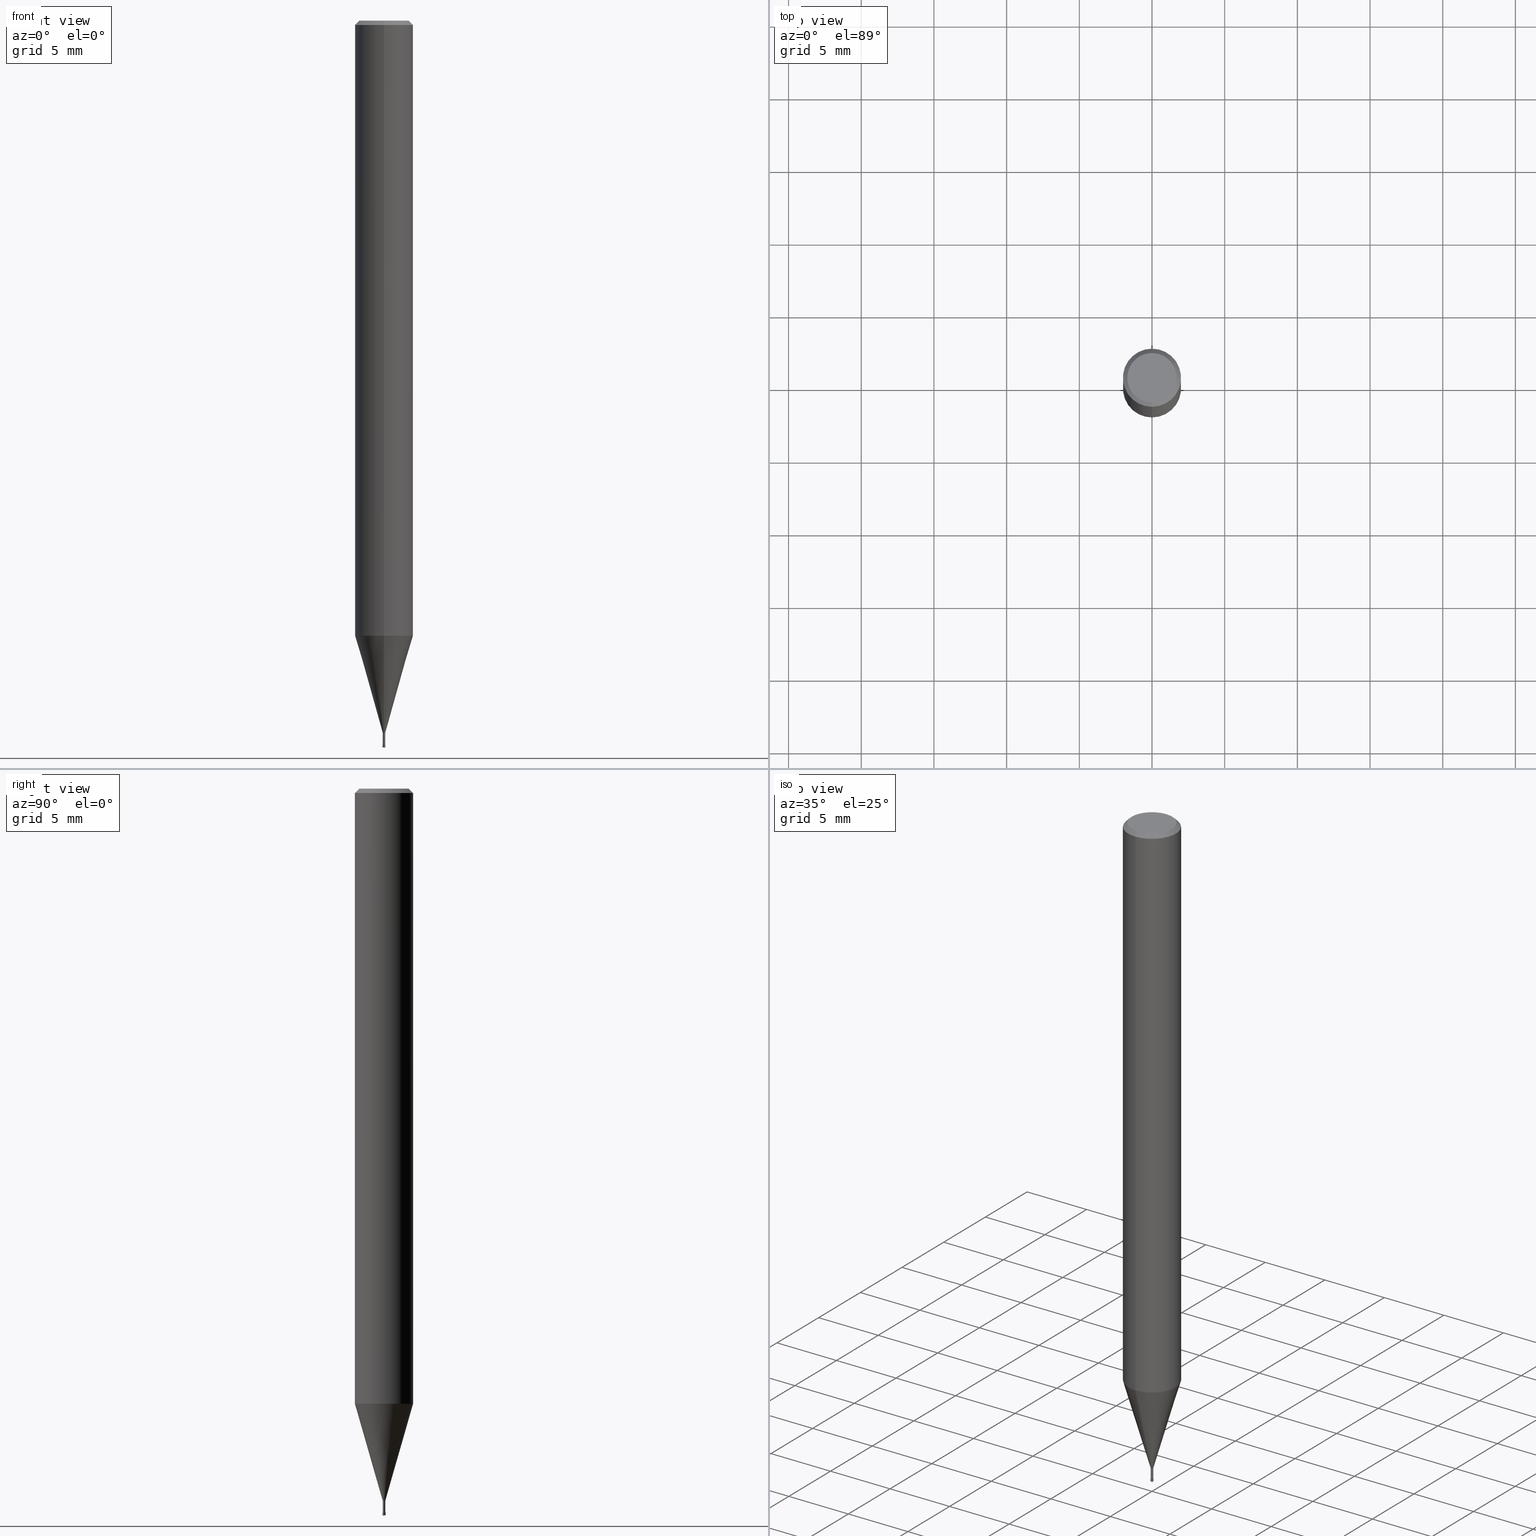
[diagram: canonical four-view strip — front | top / right | iso, engineering-drawing reading convention]
A machine part, canonical four-view strip (front | top / right | iso — engineering-drawing reading convention). The complete STEP part file that produces these views, byte-faithful:
ISO-10303-21;
HEADER;
FILE_DESCRIPTION(('no description'),'unknown implementation level');
FILE_NAME('HLRS2002-005-010E-Huellk.stp','  ',('CIMSOURCE GmbH'),('CADClick - KiM GmbH - www.kimweb.de'),'unknown preprocess','ACIS','unknown authorization');
FILE_SCHEMA(('automotive_design'));
ENDSEC;
DATA;
#1=MECHANICAL_DESIGN_GEOMETRIC_PRESENTATION_REPRESENTATION(' ',(#14,#15,#16,#17,#18,#19,#20,#21,#22,#23,#24,#25,#26,#27,#28,#29,#30,#31,#32,#33,#34,#35,#36,#37,#38,#39,#40,#41,#42,#43,#44,#45,#46,#47,#48,#49,#50,#51,#52,#53,#54,#55,#56,#57,#58,#59,#60,#61,#62,#63,#64,#65,#66,#67,#68,#69,#70,#71,#72,#73,#74,#75,#76,#77,#78,#79,#80),#10);
#2=PRODUCT_DEFINITION_CONTEXT('',#81,'design');
#3=APPLICATION_PROTOCOL_DEFINITION('INTERNATIONAL STANDARD','automotive_design',1994,#81);
#4=PRODUCT_CATEGORY_RELATIONSHIP('NONE','NONE',#82,#83);
#5=SHAPE_DEFINITION_REPRESENTATION(#84,#85);
#6=PRODUCT_DEFINITION_CONTEXT('',#86,'design');
#7=APPLICATION_PROTOCOL_DEFINITION('INTERNATIONAL STANDARD','automotive_design',1994,#86);
#8=PRODUCT_CATEGORY_RELATIONSHIP('NONE','NONE',#87,#88);
#9=SHAPE_DEFINITION_REPRESENTATION(#89,#90);
#10= (GEOMETRIC_REPRESENTATION_CONTEXT(3)GLOBAL_UNCERTAINTY_ASSIGNED_CONTEXT((#93))GLOBAL_UNIT_ASSIGNED_CONTEXT((#95,#96,#97))REPRESENTATION_CONTEXT('NONE','WORKSPACE'));
#14=STYLED_ITEM('',(#99),#100);
#15=STYLED_ITEM('',(#101),#102);
#16=STYLED_ITEM('',(#103),#104);
#17=STYLED_ITEM('',(#105),#106);
#18=STYLED_ITEM('',(#107),#108);
#19=STYLED_ITEM('',(#109),#110);
#20=STYLED_ITEM('',(#111),#112);
#21=STYLED_ITEM('',(#113),#114);
#22=STYLED_ITEM('',(#115),#116);
#23=STYLED_ITEM('',(#117),#118);
#24=STYLED_ITEM('',(#119),#120);
#25=STYLED_ITEM('',(#121),#122);
#26=STYLED_ITEM('',(#123),#124);
#27=STYLED_ITEM('',(#125),#126);
#28=STYLED_ITEM('',(#127),#128);
#29=STYLED_ITEM('',(#129),#130);
#30=STYLED_ITEM('',(#131),#132);
#31=STYLED_ITEM('',(#133),#134);
#32=STYLED_ITEM('',(#135),#136);
#33=STYLED_ITEM('',(#137),#138);
#34=STYLED_ITEM('',(#139),#140);
#35=STYLED_ITEM('',(#141),#142);
#36=STYLED_ITEM('',(#143),#144);
#37=STYLED_ITEM('',(#145),#146);
#38=STYLED_ITEM('',(#147),#148);
#39=STYLED_ITEM('',(#149),#150);
#40=STYLED_ITEM('',(#151),#152);
#41=STYLED_ITEM('',(#153),#154);
#42=STYLED_ITEM('',(#155),#156);
#43=STYLED_ITEM('',(#157),#158);
#44=STYLED_ITEM('',(#159),#160);
#45=STYLED_ITEM('',(#161),#162);
#46=STYLED_ITEM('',(#163),#164);
#47=STYLED_ITEM('',(#165),#166);
#48=STYLED_ITEM('',(#167),#168);
#49=STYLED_ITEM('',(#169),#170);
#50=STYLED_ITEM('',(#171),#172);
#51=STYLED_ITEM('',(#173),#174);
#52=STYLED_ITEM('',(#175),#176);
#53=STYLED_ITEM('',(#177),#178);
#54=STYLED_ITEM('',(#179),#180);
#55=STYLED_ITEM('',(#181),#182);
#56=STYLED_ITEM('',(#183),#184);
#57=STYLED_ITEM('',(#185),#186);
#58=STYLED_ITEM('',(#187),#188);
#59=STYLED_ITEM('',(#189),#190);
#60=STYLED_ITEM('',(#191),#192);
#61=STYLED_ITEM('',(#193),#194);
#62=STYLED_ITEM('',(#195),#196);
#63=STYLED_ITEM('',(#197),#198);
#64=STYLED_ITEM('',(#199),#200);
#65=STYLED_ITEM('',(#201),#202);
#66=STYLED_ITEM('',(#203),#204);
#67=STYLED_ITEM('',(#205),#206);
#68=STYLED_ITEM('',(#207),#208);
#69=STYLED_ITEM('',(#209),#210);
#70=STYLED_ITEM('',(#211),#212);
#71=STYLED_ITEM('',(#213),#214);
#72=STYLED_ITEM('',(#215),#216);
#73=STYLED_ITEM('',(#217),#218);
#74=STYLED_ITEM('',(#219),#220);
#75=STYLED_ITEM('',(#221),#222);
#76=STYLED_ITEM('',(#223),#224);
#77=STYLED_ITEM('',(#225),#226);
#78=STYLED_ITEM('',(#227),#228);
#79=STYLED_ITEM('',(#229),#230);
#80=STYLED_ITEM('',(#231),#232);
#81=APPLICATION_CONTEXT(' ');
#82=PRODUCT_CATEGORY('part','NONE');
#83=PRODUCT_RELATED_PRODUCT_CATEGORY('detail',' ',(#233));
#84=PRODUCT_DEFINITION_SHAPE('NONE','NONE',#234);
#85=ADVANCED_BREP_SHAPE_REPRESENTATION('1',(#186,#235),#10);
#86=APPLICATION_CONTEXT(' ');
#87=PRODUCT_CATEGORY('part','NONE');
#88=PRODUCT_RELATED_PRODUCT_CATEGORY('detail',' ',(#236));
#89=PRODUCT_DEFINITION_SHAPE('NONE','NONE',#237);
#90=ADVANCED_BREP_SHAPE_REPRESENTATION('2',(#100,#238),#10);
#93=UNCERTAINTY_MEASURE_WITH_UNIT(LENGTH_MEASURE(1.0E-006),#95,'','');
#95= (CONVERSION_BASED_UNIT('MILLIMETRE',#241)LENGTH_UNIT()NAMED_UNIT(#244));
#96= (NAMED_UNIT(#246)PLANE_ANGLE_UNIT()SI_UNIT($,.RADIAN.));
#97= (NAMED_UNIT(#246)SOLID_ANGLE_UNIT()SI_UNIT($,.STERADIAN.));
#99=PRESENTATION_STYLE_ASSIGNMENT((#252));
#100=MANIFOLD_SOLID_BREP('2',#253);
#101=PRESENTATION_STYLE_ASSIGNMENT((#254));
#102=VERTEX_POINT('',#255);
#103=PRESENTATION_STYLE_ASSIGNMENT((#256));
#104=ADVANCED_FACE('',(#257),#258,.T.);
#105=PRESENTATION_STYLE_ASSIGNMENT((#259));
#106=EDGE_CURVE('',#202,#232,#260,.T.);
#107=PRESENTATION_STYLE_ASSIGNMENT((#261));
#108=EDGE_CURVE('',#102,#128,#262,.T.);
#109=PRESENTATION_STYLE_ASSIGNMENT((#263));
#110=ADVANCED_FACE('',(#264),#265,.T.);
#111=PRESENTATION_STYLE_ASSIGNMENT((#266));
#112=VERTEX_POINT('',#267);
#113=PRESENTATION_STYLE_ASSIGNMENT((#268));
#114=ADVANCED_FACE('',(#269),#270,.T.);
#115=PRESENTATION_STYLE_ASSIGNMENT((#271));
#116=EDGE_CURVE('',#112,#214,#272,.T.);
#117=PRESENTATION_STYLE_ASSIGNMENT((#273));
#118=ADVANCED_FACE('',(#274,#275),#276,.T.);
#119=PRESENTATION_STYLE_ASSIGNMENT((#277));
#120=VERTEX_POINT('',#278);
#121=PRESENTATION_STYLE_ASSIGNMENT((#279));
#122=ADVANCED_FACE('',(#280),#281,.T.);
#123=PRESENTATION_STYLE_ASSIGNMENT((#282));
#124=ADVANCED_FACE('',(#283),#284,.T.);
#125=PRESENTATION_STYLE_ASSIGNMENT((#285));
#126=EDGE_CURVE('',#194,#164,#286,.T.);
#127=PRESENTATION_STYLE_ASSIGNMENT((#287));
#128=VERTEX_POINT('',#288);
#129=PRESENTATION_STYLE_ASSIGNMENT((#289));
#130=ADVANCED_FACE('',(#290),#291,.T.);
#131=PRESENTATION_STYLE_ASSIGNMENT((#292));
#132=ADVANCED_FACE('',(#293),#294,.T.);
#133=PRESENTATION_STYLE_ASSIGNMENT((#295));
#134=VERTEX_POINT('',#296);
#135=PRESENTATION_STYLE_ASSIGNMENT((#297));
#136=ADVANCED_FACE('',(#298),#299,.T.);
#137=PRESENTATION_STYLE_ASSIGNMENT((#300));
#138=EDGE_CURVE('',#204,#176,#301,.T.);
#139=PRESENTATION_STYLE_ASSIGNMENT((#302));
#140=EDGE_CURVE('',#232,#202,#303,.T.);
#141=PRESENTATION_STYLE_ASSIGNMENT((#304));
#142=EDGE_CURVE('',#120,#206,#305,.T.);
#143=PRESENTATION_STYLE_ASSIGNMENT((#306));
#144=EDGE_CURVE('',#206,#120,#307,.T.);
#145=PRESENTATION_STYLE_ASSIGNMENT((#308));
#146=EDGE_CURVE('',#222,#194,#309,.T.);
#147=PRESENTATION_STYLE_ASSIGNMENT((#310));
#148=ADVANCED_FACE('',(#311),#312,.T.);
#149=PRESENTATION_STYLE_ASSIGNMENT((#313));
#150=VERTEX_POINT('',#314);
#151=PRESENTATION_STYLE_ASSIGNMENT((#315));
#152=EDGE_CURVE('',#200,#206,#316,.T.);
#153=PRESENTATION_STYLE_ASSIGNMENT((#317));
#154=EDGE_CURVE('',#204,#194,#318,.T.);
#155=PRESENTATION_STYLE_ASSIGNMENT((#319));
#156=EDGE_CURVE('',#150,#164,#320,.T.);
#157=PRESENTATION_STYLE_ASSIGNMENT((#321));
#158=ADVANCED_FACE('',(#322),#323,.T.);
#159=PRESENTATION_STYLE_ASSIGNMENT((#324));
#160=ADVANCED_FACE('',(#325),#326,.T.);
#161=PRESENTATION_STYLE_ASSIGNMENT((#327));
#162=ADVANCED_FACE('',(#328),#329,.T.);
#163=PRESENTATION_STYLE_ASSIGNMENT((#330));
#164=VERTEX_POINT('',#331);
#165=PRESENTATION_STYLE_ASSIGNMENT((#332));
#166=EDGE_CURVE('',#200,#214,#333,.T.);
#167=PRESENTATION_STYLE_ASSIGNMENT((#334));
#168=EDGE_CURVE('',#200,#134,#335,.T.);
#169=PRESENTATION_STYLE_ASSIGNMENT((#336));
#170=EDGE_CURVE('',#102,#180,#337,.T.);
#171=PRESENTATION_STYLE_ASSIGNMENT((#338));
#172=EDGE_CURVE('',#180,#196,#339,.T.);
#173=PRESENTATION_STYLE_ASSIGNMENT((#340));
#174=EDGE_CURVE('',#196,#128,#341,.T.);
#175=PRESENTATION_STYLE_ASSIGNMENT((#342));
#176=VERTEX_POINT('',#343);
#177=PRESENTATION_STYLE_ASSIGNMENT((#344));
#178=EDGE_CURVE('',#128,#232,#345,.T.);
#179=PRESENTATION_STYLE_ASSIGNMENT((#346));
#180=VERTEX_POINT('',#347);
#181=PRESENTATION_STYLE_ASSIGNMENT((#348));
#182=EDGE_CURVE('',#214,#112,#349,.T.);
#183=PRESENTATION_STYLE_ASSIGNMENT((#350));
#184=EDGE_CURVE('',#112,#134,#351,.T.);
#185=PRESENTATION_STYLE_ASSIGNMENT((#352));
#186=MANIFOLD_SOLID_BREP('1',#353);
#187=PRESENTATION_STYLE_ASSIGNMENT((#354));
#188=EDGE_CURVE('',#128,#102,#355,.T.);
#189=PRESENTATION_STYLE_ASSIGNMENT((#356));
#190=ADVANCED_FACE('',(#357),#358,.T.);
#191=PRESENTATION_STYLE_ASSIGNMENT((#359));
#192=EDGE_CURVE('',#202,#102,#360,.T.);
#193=PRESENTATION_STYLE_ASSIGNMENT((#361));
#194=VERTEX_POINT('',#362);
#195=PRESENTATION_STYLE_ASSIGNMENT((#363));
#196=VERTEX_POINT('',#364);
#197=PRESENTATION_STYLE_ASSIGNMENT((#365));
#198=ADVANCED_FACE('',(#366),#367,.T.);
#199=PRESENTATION_STYLE_ASSIGNMENT((#368));
#200=VERTEX_POINT('',#369);
#201=PRESENTATION_STYLE_ASSIGNMENT((#370));
#202=VERTEX_POINT('',#371);
#203=PRESENTATION_STYLE_ASSIGNMENT((#372));
#204=VERTEX_POINT('',#373);
#205=PRESENTATION_STYLE_ASSIGNMENT((#374));
#206=VERTEX_POINT('',#375);
#207=PRESENTATION_STYLE_ASSIGNMENT((#376));
#208=EDGE_CURVE('',#164,#150,#377,.T.);
#209=PRESENTATION_STYLE_ASSIGNMENT((#378));
#210=EDGE_CURVE('',#194,#222,#379,.T.);
#211=PRESENTATION_STYLE_ASSIGNMENT((#380));
#212=EDGE_CURVE('',#196,#180,#381,.T.);
#213=PRESENTATION_STYLE_ASSIGNMENT((#382));
#214=VERTEX_POINT('',#383);
#215=PRESENTATION_STYLE_ASSIGNMENT((#384));
#216=EDGE_CURVE('',#134,#200,#385,.T.);
#217=PRESENTATION_STYLE_ASSIGNMENT((#386));
#218=EDGE_CURVE('',#120,#134,#387,.T.);
#219=PRESENTATION_STYLE_ASSIGNMENT((#388));
#220=ADVANCED_FACE('',(#389),#390,.T.);
#221=PRESENTATION_STYLE_ASSIGNMENT((#391));
#222=VERTEX_POINT('',#392);
#223=PRESENTATION_STYLE_ASSIGNMENT((#393));
#224=EDGE_CURVE('',#176,#204,#394,.T.);
#225=PRESENTATION_STYLE_ASSIGNMENT((#395));
#226=ADVANCED_FACE('',(#396),#397,.T.);
#227=PRESENTATION_STYLE_ASSIGNMENT((#398));
#228=EDGE_CURVE('',#150,#222,#399,.T.);
#229=PRESENTATION_STYLE_ASSIGNMENT((#400));
#230=EDGE_CURVE('',#222,#176,#401,.T.);
#231=PRESENTATION_STYLE_ASSIGNMENT((#402));
#232=VERTEX_POINT('',#403);
#233=PRODUCT('1','1','PART-1-DESC',(#404));
#234=PRODUCT_DEFINITION('NONE','NONE',#405,#2);
#235=AXIS2_PLACEMENT_3D('',#406,#407,#408);
#236=PRODUCT('2','2','PART-2-DESC',(#409));
#237=PRODUCT_DEFINITION('NONE','NONE',#410,#6);
#238=AXIS2_PLACEMENT_3D('',#411,#412,#413);
#241=LENGTH_MEASURE_WITH_UNIT(LENGTH_MEASURE(1.0),#414);
#244=DIMENSIONAL_EXPONENTS(1.0,0.0,0.0,0.0,0.0,0.0,0.0);
#246=DIMENSIONAL_EXPONENTS(0.0,0.0,0.0,0.0,0.0,0.0,0.0);
#252=SURFACE_STYLE_USAGE(.BOTH.,#415);
#253=CLOSED_SHELL('',(#190,#130,#220,#226,#158,#104));
#254=POINT_STYLE(' ',#416,POSITIVE_LENGTH_MEASURE(1.0E-006),#417);
#255=CARTESIAN_POINT('',(0.0,0.08495,-49.0));
#256=SURFACE_STYLE_USAGE(.BOTH.,#418);
#257=FACE_OUTER_BOUND('',#419,.T.);
#258=PLANE('',#420);
#259=CURVE_STYLE('',#421,POSITIVE_LENGTH_MEASURE(1.0E-006),#422);
#260=CIRCLE('',#423,1.99995);
#261=CURVE_STYLE('',#424,POSITIVE_LENGTH_MEASURE(1.0E-006),#425);
#262=CIRCLE('',#426,0.08495);
#263=SURFACE_STYLE_USAGE(.BOTH.,#427);
#264=FACE_OUTER_BOUND('',#428,.T.);
#265=PLANE('',#429);
#266=POINT_STYLE(' ',#430,POSITIVE_LENGTH_MEASURE(1.0E-006),#431);
#267=CARTESIAN_POINT('',(0.0,0.05,-50.0));
#268=SURFACE_STYLE_USAGE(.BOTH.,#432);
#269=FACE_OUTER_BOUND('',#433,.T.);
#270=CONICAL_SURFACE('',#434,1.04245,0.279268497676986);
#271=CURVE_STYLE('',#435,POSITIVE_LENGTH_MEASURE(1.0E-006),#436);
#272=CIRCLE('',#437,0.05);
#273=SURFACE_STYLE_USAGE(.BOTH.,#438);
#274=FACE_OUTER_BOUND('',#439,.T.);
#275=FACE_BOUND('',#440,.T.);
#276=PLANE('',#441);
#277=POINT_STYLE(' ',#442,POSITIVE_LENGTH_MEASURE(1.0E-006),#443);
#278=CARTESIAN_POINT('',(0.0,0.0999,-49.8));
#279=SURFACE_STYLE_USAGE(.BOTH.,#444);
#280=FACE_OUTER_BOUND('',#445,.T.);
#281=PLANE('',#446);
#282=SURFACE_STYLE_USAGE(.BOTH.,#447);
#283=FACE_OUTER_BOUND('',#448,.T.);
#284=CONICAL_SURFACE('',#449,1.85,0.785398163397453);
#285=CURVE_STYLE('',#450,POSITIVE_LENGTH_MEASURE(1.0E-006),#451);
#286=LINE('',#452,#453);
#287=POINT_STYLE(' ',#454,POSITIVE_LENGTH_MEASURE(1.0E-006),#455);
#288=CARTESIAN_POINT('',(1.04030309757211E-017,-0.08495,-49.0));
#289=SURFACE_STYLE_USAGE(.BOTH.,#456);
#290=FACE_OUTER_BOUND('',#457,.T.);
#291=CONICAL_SURFACE('',#458,0.09995,0.00066666656790128);
#292=SURFACE_STYLE_USAGE(.BOTH.,#459);
#293=FACE_OUTER_BOUND('',#460,.T.);
#294=CYLINDRICAL_SURFACE('',#461,2.0);
#295=POINT_STYLE(' ',#462,POSITIVE_LENGTH_MEASURE(1.0E-006),#463);
#296=CARTESIAN_POINT('',(0.0,0.1,-49.95));
#297=SURFACE_STYLE_USAGE(.BOTH.,#464);
#298=FACE_OUTER_BOUND('',#465,.T.);
#299=CONICAL_SURFACE('',#466,1.85,0.785398163397453);
#300=CURVE_STYLE('',#467,POSITIVE_LENGTH_MEASURE(1.0E-006),#468);
#301=CIRCLE('',#469,2.0);
#302=CURVE_STYLE('',#470,POSITIVE_LENGTH_MEASURE(1.0E-006),#471);
#303=CIRCLE('',#472,1.99995);
#304=CURVE_STYLE('',#473,POSITIVE_LENGTH_MEASURE(1.0E-006),#474);
#305=CIRCLE('',#475,0.0999);
#306=CURVE_STYLE('',#476,POSITIVE_LENGTH_MEASURE(1.0E-006),#477);
#307=CIRCLE('',#478,0.0999);
#308=CURVE_STYLE('',#479,POSITIVE_LENGTH_MEASURE(1.0E-006),#480);
#309=CIRCLE('',#481,2.0);
#310=SURFACE_STYLE_USAGE(.BOTH.,#482);
#311=FACE_OUTER_BOUND('',#483,.T.);
#312=CONICAL_SURFACE('',#484,1.04245,0.279268497676986);
#313=POINT_STYLE(' ',#485,POSITIVE_LENGTH_MEASURE(1.0E-006),#486);
#314=CARTESIAN_POINT('',(0.0,1.7,0.0));
#315=CURVE_STYLE('',#487,POSITIVE_LENGTH_MEASURE(1.0E-006),#488);
#316=LINE('',#489,#490);
#317=CURVE_STYLE('',#491,POSITIVE_LENGTH_MEASURE(1.0E-006),#492);
#318=LINE('',#493,#494);
#319=CURVE_STYLE('',#495,POSITIVE_LENGTH_MEASURE(1.0E-006),#496);
#320=CIRCLE('',#497,1.7);
#321=SURFACE_STYLE_USAGE(.BOTH.,#498);
#322=FACE_OUTER_BOUND('',#499,.T.);
#323=TOROIDAL_SURFACE('',#500,0.0499999999999999,0.0500000000000001);
#324=SURFACE_STYLE_USAGE(.BOTH.,#501);
#325=FACE_OUTER_BOUND('',#502,.T.);
#326=CYLINDRICAL_SURFACE('',#503,0.08495);
#327=SURFACE_STYLE_USAGE(.BOTH.,#504);
#328=FACE_OUTER_BOUND('',#505,.T.);
#329=CYLINDRICAL_SURFACE('',#506,0.08495);
#330=POINT_STYLE(' ',#507,POSITIVE_LENGTH_MEASURE(1.0E-006),#508);
#331=CARTESIAN_POINT('',(2.08183080149804E-016,-1.7,0.0));
#332=CURVE_STYLE('',#509,POSITIVE_LENGTH_MEASURE(1.0E-006),#510);
#333=CIRCLE('',#511,0.0500000000000001);
#334=CURVE_STYLE('',#512,POSITIVE_LENGTH_MEASURE(1.0E-006),#513);
#335=CIRCLE('',#514,0.1);
#336=CURVE_STYLE('',#515,POSITIVE_LENGTH_MEASURE(1.0E-006),#516);
#337=LINE('',#517,#518);
#338=CURVE_STYLE('',#519,POSITIVE_LENGTH_MEASURE(1.0E-006),#520);
#339=CIRCLE('',#521,0.08495);
#340=CURVE_STYLE('',#522,POSITIVE_LENGTH_MEASURE(1.0E-006),#523);
#341=LINE('',#524,#525);
#342=POINT_STYLE(' ',#526,POSITIVE_LENGTH_MEASURE(1.0E-006),#527);
#343=CARTESIAN_POINT('',(0.0,2.0,-42.322));
#344=CURVE_STYLE('',#528,POSITIVE_LENGTH_MEASURE(1.0E-006),#529);
#345=LINE('',#530,#531);
#346=POINT_STYLE(' ',#532,POSITIVE_LENGTH_MEASURE(1.0E-006),#533);
#347=CARTESIAN_POINT('',(0.0,0.08495,-49.8));
#348=CURVE_STYLE('',#534,POSITIVE_LENGTH_MEASURE(1.0E-006),#535);
#349=CIRCLE('',#536,0.05);
#350=CURVE_STYLE('',#537,POSITIVE_LENGTH_MEASURE(1.0E-006),#538);
#351=CIRCLE('',#539,0.0500000000000001);
#352=SURFACE_STYLE_USAGE(.BOTH.,#540);
#353=CLOSED_SHELL('',(#162,#114,#132,#136,#118,#110,#124,#198,#148,#160,#122));
#354=CURVE_STYLE('',#541,POSITIVE_LENGTH_MEASURE(1.0E-006),#542);
#355=CIRCLE('',#543,0.08495);
#356=SURFACE_STYLE_USAGE(.BOTH.,#544);
#357=FACE_OUTER_BOUND('',#545,.T.);
#358=TOROIDAL_SURFACE('',#546,0.0499999999999999,0.0500000000000001);
#359=CURVE_STYLE('',#547,POSITIVE_LENGTH_MEASURE(1.0E-006),#548);
#360=LINE('',#549,#550);
#361=POINT_STYLE(' ',#551,POSITIVE_LENGTH_MEASURE(1.0E-006),#552);
#362=CARTESIAN_POINT('',(2.44921270764475E-016,-2.0,-0.299999999999997));
#363=POINT_STYLE(' ',#553,POSITIVE_LENGTH_MEASURE(1.0E-006),#554);
#364=CARTESIAN_POINT('',(1.04030309757211E-017,-0.08495,-49.8));
#365=SURFACE_STYLE_USAGE(.BOTH.,#555);
#366=FACE_OUTER_BOUND('',#556,.T.);
#367=CYLINDRICAL_SURFACE('',#557,2.0);
#368=POINT_STYLE(' ',#558,POSITIVE_LENGTH_MEASURE(1.0E-006),#559);
#369=CARTESIAN_POINT('',(1.22460635382238E-017,-0.1,-49.95));
#370=POINT_STYLE(' ',#560,POSITIVE_LENGTH_MEASURE(1.0E-006),#561);
#371=CARTESIAN_POINT('',(0.0,1.99995,-42.322));
#372=POINT_STYLE(' ',#562,POSITIVE_LENGTH_MEASURE(1.0E-006),#563);
#373=CARTESIAN_POINT('',(2.44921270764475E-016,-2.0,-42.322));
#374=POINT_STYLE(' ',#564,POSITIVE_LENGTH_MEASURE(1.0E-006),#565);
#375=CARTESIAN_POINT('',(1.22338174746855E-017,-0.0999,-49.8));
#376=CURVE_STYLE('',#566,POSITIVE_LENGTH_MEASURE(1.0E-006),#567);
#377=CIRCLE('',#568,1.7);
#378=CURVE_STYLE('',#569,POSITIVE_LENGTH_MEASURE(1.0E-006),#570);
#379=CIRCLE('',#571,2.0);
#380=CURVE_STYLE('',#572,POSITIVE_LENGTH_MEASURE(1.0E-006),#573);
#381=CIRCLE('',#574,0.08495);
#382=POINT_STYLE(' ',#575,POSITIVE_LENGTH_MEASURE(1.0E-006),#576);
#383=CARTESIAN_POINT('',(6.12303176911189E-018,-0.05,-50.0));
#384=CURVE_STYLE('',#577,POSITIVE_LENGTH_MEASURE(1.0E-006),#578);
#385=CIRCLE('',#579,0.1);
#386=CURVE_STYLE('',#580,POSITIVE_LENGTH_MEASURE(1.0E-006),#581);
#387=LINE('',#582,#583);
#388=SURFACE_STYLE_USAGE(.BOTH.,#584);
#389=FACE_OUTER_BOUND('',#585,.T.);
#390=PLANE('',#586);
#391=POINT_STYLE(' ',#587,POSITIVE_LENGTH_MEASURE(1.0E-006),#588);
#392=CARTESIAN_POINT('',(0.0,2.0,-0.299999999999997));
#393=CURVE_STYLE('',#589,POSITIVE_LENGTH_MEASURE(1.0E-006),#590);
#394=CIRCLE('',#591,2.0);
#395=SURFACE_STYLE_USAGE(.BOTH.,#592);
#396=FACE_OUTER_BOUND('',#593,.T.);
#397=CONICAL_SURFACE('',#594,0.09995,0.00066666656790128);
#398=CURVE_STYLE('',#595,POSITIVE_LENGTH_MEASURE(1.0E-006),#596);
#399=LINE('',#597,#598);
#400=CURVE_STYLE('',#599,POSITIVE_LENGTH_MEASURE(1.0E-006),#600);
#401=LINE('',#601,#602);
#402=POINT_STYLE(' ',#603,POSITIVE_LENGTH_MEASURE(1.0E-006),#604);
#403=CARTESIAN_POINT('',(2.44915147732706E-016,-1.99995,-42.322));
#404=PRODUCT_CONTEXT('',#81,'mechanical');
#405=PRODUCT_DEFINITION_FORMATION_WITH_SPECIFIED_SOURCE(' ','NONE',#233,.NOT_KNOWN.);
#406=CARTESIAN_POINT('',(0.0,0.0,0.0));
#407=DIRECTION('',(0.0,0.0,1.0));
#408=DIRECTION('',(1.0,0.0,0.0));
#409=PRODUCT_CONTEXT('',#86,'mechanical');
#410=PRODUCT_DEFINITION_FORMATION_WITH_SPECIFIED_SOURCE(' ','NONE',#236,.NOT_KNOWN.);
#411=CARTESIAN_POINT('',(0.0,0.0,0.0));
#412=DIRECTION('',(0.0,0.0,1.0));
#413=DIRECTION('',(1.0,0.0,0.0));
#414= (NAMED_UNIT(#244)LENGTH_UNIT()SI_UNIT(.MILLI.,.METRE.));
#415=SURFACE_SIDE_STYLE('',(#606));
#416=PRE_DEFINED_MARKER('');
#417=COLOUR_RGB('',0.498039215803146,0.498039215803146,0.498039215803146);
#418=SURFACE_SIDE_STYLE('',(#607));
#419=EDGE_LOOP('',(#608,#609));
#420=AXIS2_PLACEMENT_3D('',#610,#611,#612);
#421=DRAUGHTING_PRE_DEFINED_CURVE_FONT('continuous');
#422=COLOUR_RGB('',0.498039215803146,0.498039215803146,0.498039215803146);
#423=AXIS2_PLACEMENT_3D('',#613,#614,#615);
#424=DRAUGHTING_PRE_DEFINED_CURVE_FONT('continuous');
#425=COLOUR_RGB('',0.498039215803146,0.498039215803146,0.498039215803146);
#426=AXIS2_PLACEMENT_3D('',#616,#617,#618);
#427=SURFACE_SIDE_STYLE('',(#619));
#428=EDGE_LOOP('',(#620,#621));
#429=AXIS2_PLACEMENT_3D('',#622,#623,#624);
#430=PRE_DEFINED_MARKER('');
#431=COLOUR_RGB('',0.800000011920929,0.800000011920929,0.800000011920929);
#432=SURFACE_SIDE_STYLE('',(#625));
#433=EDGE_LOOP('',(#626,#627,#628,#629));
#434=AXIS2_PLACEMENT_3D('',#630,#631,#632);
#435=DRAUGHTING_PRE_DEFINED_CURVE_FONT('continuous');
#436=COLOUR_RGB('',0.800000011920929,0.800000011920929,0.800000011920929);
#437=AXIS2_PLACEMENT_3D('',#633,#634,#635);
#438=SURFACE_SIDE_STYLE('',(#636));
#439=EDGE_LOOP('',(#637,#638));
#440=EDGE_LOOP('',(#639,#640));
#441=AXIS2_PLACEMENT_3D('',#641,#642,#643);
#442=PRE_DEFINED_MARKER('');
#443=COLOUR_RGB('',0.800000011920929,0.800000011920929,0.800000011920929);
#444=SURFACE_SIDE_STYLE('',(#644));
#445=EDGE_LOOP('',(#645,#646));
#446=AXIS2_PLACEMENT_3D('',#647,#648,#649);
#447=SURFACE_SIDE_STYLE('',(#650));
#448=EDGE_LOOP('',(#651,#652,#653,#654));
#449=AXIS2_PLACEMENT_3D('',#655,#656,#657);
#450=DRAUGHTING_PRE_DEFINED_CURVE_FONT('continuous');
#451=COLOUR_RGB('',0.498039215803146,0.498039215803146,0.498039215803146);
#452=CARTESIAN_POINT('',(2.2655217545714E-016,-1.85,-0.149999999999999));
#453=VECTOR('',#658,1.0);
#454=PRE_DEFINED_MARKER('');
#455=COLOUR_RGB('',0.498039215803146,0.498039215803146,0.498039215803146);
#456=SURFACE_SIDE_STYLE('',(#659));
#457=EDGE_LOOP('',(#660,#661,#662,#663));
#458=AXIS2_PLACEMENT_3D('',#664,#665,#666);
#459=SURFACE_SIDE_STYLE('',(#667));
#460=EDGE_LOOP('',(#668,#669,#670,#671));
#461=AXIS2_PLACEMENT_3D('',#672,#673,#674);
#462=PRE_DEFINED_MARKER('');
#463=COLOUR_RGB('',0.800000011920929,0.800000011920929,0.800000011920929);
#464=SURFACE_SIDE_STYLE('',(#675));
#465=EDGE_LOOP('',(#676,#677,#678,#679));
#466=AXIS2_PLACEMENT_3D('',#680,#681,#682);
#467=DRAUGHTING_PRE_DEFINED_CURVE_FONT('continuous');
#468=COLOUR_RGB('',0.498039215803146,0.498039215803146,0.498039215803146);
#469=AXIS2_PLACEMENT_3D('',#683,#684,#685);
#470=DRAUGHTING_PRE_DEFINED_CURVE_FONT('continuous');
#471=COLOUR_RGB('',0.498039215803146,0.498039215803146,0.498039215803146);
#472=AXIS2_PLACEMENT_3D('',#686,#687,#688);
#473=DRAUGHTING_PRE_DEFINED_CURVE_FONT('continuous');
#474=COLOUR_RGB('',0.800000011920929,0.800000011920929,0.800000011920929);
#475=AXIS2_PLACEMENT_3D('',#689,#690,#691);
#476=DRAUGHTING_PRE_DEFINED_CURVE_FONT('continuous');
#477=COLOUR_RGB('',0.800000011920929,0.800000011920929,0.800000011920929);
#478=AXIS2_PLACEMENT_3D('',#692,#693,#694);
#479=DRAUGHTING_PRE_DEFINED_CURVE_FONT('continuous');
#480=COLOUR_RGB('',0.498039215803146,0.498039215803146,0.498039215803146);
#481=AXIS2_PLACEMENT_3D('',#695,#696,#697);
#482=SURFACE_SIDE_STYLE('',(#698));
#483=EDGE_LOOP('',(#699,#700,#701,#702));
#484=AXIS2_PLACEMENT_3D('',#703,#704,#705);
#485=PRE_DEFINED_MARKER('');
#486=COLOUR_RGB('',0.498039215803146,0.498039215803146,0.498039215803146);
#487=DRAUGHTING_PRE_DEFINED_CURVE_FONT('continuous');
#488=COLOUR_RGB('',0.800000011920929,0.800000011920929,0.800000011920929);
#489=CARTESIAN_POINT('',(1.22399405064547E-017,-0.09995,-49.875));
#490=VECTOR('',#706,1.0);
#491=DRAUGHTING_PRE_DEFINED_CURVE_FONT('continuous');
#492=COLOUR_RGB('',0.498039215803146,0.498039215803146,0.498039215803146);
#493=CARTESIAN_POINT('',(2.44921270764475E-016,-2.0,-21.311));
#494=VECTOR('',#707,1.0);
#495=DRAUGHTING_PRE_DEFINED_CURVE_FONT('continuous');
#496=COLOUR_RGB('',0.498039215803146,0.498039215803146,0.498039215803146);
#497=AXIS2_PLACEMENT_3D('',#708,#709,#710);
#498=SURFACE_SIDE_STYLE('',(#711));
#499=EDGE_LOOP('',(#712,#713,#714,#715));
#500=AXIS2_PLACEMENT_3D('',#716,#717,#718);
#501=SURFACE_SIDE_STYLE('',(#719));
#502=EDGE_LOOP('',(#720,#721,#722,#723));
#503=AXIS2_PLACEMENT_3D('',#724,#725,#726);
#504=SURFACE_SIDE_STYLE('',(#727));
#505=EDGE_LOOP('',(#728,#729,#730,#731));
#506=AXIS2_PLACEMENT_3D('',#732,#733,#734);
#507=PRE_DEFINED_MARKER('');
#508=COLOUR_RGB('',0.498039215803146,0.498039215803146,0.498039215803146);
#509=DRAUGHTING_PRE_DEFINED_CURVE_FONT('continuous');
#510=COLOUR_RGB('',0.800000011920929,0.800000011920929,0.800000011920929);
#511=AXIS2_PLACEMENT_3D('',#735,#736,#737);
#512=DRAUGHTING_PRE_DEFINED_CURVE_FONT('continuous');
#513=COLOUR_RGB('',0.800000011920929,0.800000011920929,0.800000011920929);
#514=AXIS2_PLACEMENT_3D('',#738,#739,#740);
#515=DRAUGHTING_PRE_DEFINED_CURVE_FONT('continuous');
#516=COLOUR_RGB('',0.498039215803146,0.498039215803146,0.498039215803146);
#517=CARTESIAN_POINT('',(-1.04030309757211E-017,0.08495,-49.4));
#518=VECTOR('',#741,1.0);
#519=DRAUGHTING_PRE_DEFINED_CURVE_FONT('continuous');
#520=COLOUR_RGB('',0.498039215803146,0.498039215803146,0.498039215803146);
#521=AXIS2_PLACEMENT_3D('',#742,#743,#744);
#522=DRAUGHTING_PRE_DEFINED_CURVE_FONT('continuous');
#523=COLOUR_RGB('',0.498039215803146,0.498039215803146,0.498039215803146);
#524=CARTESIAN_POINT('',(1.04030309757211E-017,-0.08495,-49.4));
#525=VECTOR('',#745,1.0);
#526=PRE_DEFINED_MARKER('');
#527=COLOUR_RGB('',0.498039215803146,0.498039215803146,0.498039215803146);
#528=DRAUGHTING_PRE_DEFINED_CURVE_FONT('continuous');
#529=COLOUR_RGB('',0.498039215803146,0.498039215803146,0.498039215803146);
#530=CARTESIAN_POINT('',(1.27659089354214E-016,-1.04245,-45.661));
#531=VECTOR('',#746,1.0);
#532=PRE_DEFINED_MARKER('');
#533=COLOUR_RGB('',0.498039215803146,0.498039215803146,0.498039215803146);
#534=DRAUGHTING_PRE_DEFINED_CURVE_FONT('continuous');
#535=COLOUR_RGB('',0.800000011920929,0.800000011920929,0.800000011920929);
#536=AXIS2_PLACEMENT_3D('',#747,#748,#749);
#537=DRAUGHTING_PRE_DEFINED_CURVE_FONT('continuous');
#538=COLOUR_RGB('',0.800000011920929,0.800000011920929,0.800000011920929);
#539=AXIS2_PLACEMENT_3D('',#750,#751,#752);
#540=SURFACE_SIDE_STYLE('',(#753));
#541=DRAUGHTING_PRE_DEFINED_CURVE_FONT('continuous');
#542=COLOUR_RGB('',0.498039215803146,0.498039215803146,0.498039215803146);
#543=AXIS2_PLACEMENT_3D('',#754,#755,#756);
#544=SURFACE_SIDE_STYLE('',(#757));
#545=EDGE_LOOP('',(#758,#759,#760,#761));
#546=AXIS2_PLACEMENT_3D('',#762,#763,#764);
#547=DRAUGHTING_PRE_DEFINED_CURVE_FONT('continuous');
#548=COLOUR_RGB('',0.498039215803146,0.498039215803146,0.498039215803146);
#549=CARTESIAN_POINT('',(-1.27659089354214E-016,1.04245,-45.661));
#550=VECTOR('',#765,1.0);
#551=PRE_DEFINED_MARKER('');
#552=COLOUR_RGB('',0.498039215803146,0.498039215803146,0.498039215803146);
#553=PRE_DEFINED_MARKER('');
#554=COLOUR_RGB('',0.498039215803146,0.498039215803146,0.498039215803146);
#555=SURFACE_SIDE_STYLE('',(#766));
#556=EDGE_LOOP('',(#767,#768,#769,#770));
#557=AXIS2_PLACEMENT_3D('',#771,#772,#773);
#558=PRE_DEFINED_MARKER('');
#559=COLOUR_RGB('',0.800000011920929,0.800000011920929,0.800000011920929);
#560=PRE_DEFINED_MARKER('');
#561=COLOUR_RGB('',0.498039215803146,0.498039215803146,0.498039215803146);
#562=PRE_DEFINED_MARKER('');
#563=COLOUR_RGB('',0.498039215803146,0.498039215803146,0.498039215803146);
#564=PRE_DEFINED_MARKER('');
#565=COLOUR_RGB('',0.800000011920929,0.800000011920929,0.800000011920929);
#566=DRAUGHTING_PRE_DEFINED_CURVE_FONT('continuous');
#567=COLOUR_RGB('',0.498039215803146,0.498039215803146,0.498039215803146);
#568=AXIS2_PLACEMENT_3D('',#774,#775,#776);
#569=DRAUGHTING_PRE_DEFINED_CURVE_FONT('continuous');
#570=COLOUR_RGB('',0.498039215803146,0.498039215803146,0.498039215803146);
#571=AXIS2_PLACEMENT_3D('',#777,#778,#779);
#572=DRAUGHTING_PRE_DEFINED_CURVE_FONT('continuous');
#573=COLOUR_RGB('',0.498039215803146,0.498039215803146,0.498039215803146);
#574=AXIS2_PLACEMENT_3D('',#780,#781,#782);
#575=PRE_DEFINED_MARKER('');
#576=COLOUR_RGB('',0.800000011920929,0.800000011920929,0.800000011920929);
#577=DRAUGHTING_PRE_DEFINED_CURVE_FONT('continuous');
#578=COLOUR_RGB('',0.800000011920929,0.800000011920929,0.800000011920929);
#579=AXIS2_PLACEMENT_3D('',#783,#784,#785);
#580=DRAUGHTING_PRE_DEFINED_CURVE_FONT('continuous');
#581=COLOUR_RGB('',0.800000011920929,0.800000011920929,0.800000011920929);
#582=CARTESIAN_POINT('',(-1.22399405064547E-017,0.09995,-49.875));
#583=VECTOR('',#786,1.0);
#584=SURFACE_SIDE_STYLE('',(#787));
#585=EDGE_LOOP('',(#788,#789));
#586=AXIS2_PLACEMENT_3D('',#790,#791,#792);
#587=PRE_DEFINED_MARKER('');
#588=COLOUR_RGB('',0.498039215803146,0.498039215803146,0.498039215803146);
#589=DRAUGHTING_PRE_DEFINED_CURVE_FONT('continuous');
#590=COLOUR_RGB('',0.498039215803146,0.498039215803146,0.498039215803146);
#591=AXIS2_PLACEMENT_3D('',#793,#794,#795);
#592=SURFACE_SIDE_STYLE('',(#796));
#593=EDGE_LOOP('',(#797,#798,#799,#800));
#594=AXIS2_PLACEMENT_3D('',#801,#802,#803);
#595=DRAUGHTING_PRE_DEFINED_CURVE_FONT('continuous');
#596=COLOUR_RGB('',0.498039215803146,0.498039215803146,0.498039215803146);
#597=CARTESIAN_POINT('',(-2.2655217545714E-016,1.85,-0.149999999999999));
#598=VECTOR('',#804,1.0);
#599=DRAUGHTING_PRE_DEFINED_CURVE_FONT('continuous');
#600=COLOUR_RGB('',0.498039215803146,0.498039215803146,0.498039215803146);
#601=CARTESIAN_POINT('',(-2.44921270764475E-016,2.0,-21.311));
#602=VECTOR('',#805,1.0);
#603=PRE_DEFINED_MARKER('');
#604=COLOUR_RGB('',0.498039215803146,0.498039215803146,0.498039215803146);
#606=SURFACE_STYLE_FILL_AREA(#806);
#607=SURFACE_STYLE_FILL_AREA(#807);
#608=ORIENTED_EDGE('',*,*,#116,.T.);
#609=ORIENTED_EDGE('',*,*,#182,.T.);
#610=CARTESIAN_POINT('',(0.0,0.025,-50.0));
#611=DIRECTION('',(0.0,0.0,-1.0));
#612=DIRECTION('',(0.0,1.0,0.0));
#613=CARTESIAN_POINT('',(0.0,0.0,-42.322));
#614=DIRECTION('',(0.0,0.0,-1.0));
#615=DIRECTION('',(0.0,1.0,0.0));
#616=CARTESIAN_POINT('',(0.0,0.0,-49.0));
#617=DIRECTION('',(0.0,0.0,-1.0));
#618=DIRECTION('',(0.0,1.0,0.0));
#619=SURFACE_STYLE_FILL_AREA(#808);
#620=ORIENTED_EDGE('',*,*,#156,.F.);
#621=ORIENTED_EDGE('',*,*,#208,.F.);
#622=CARTESIAN_POINT('',(0.0,0.85,0.0));
#623=DIRECTION('',(-0.0,0.0,1.0));
#624=DIRECTION('',(0.0,-1.0,0.0));
#625=SURFACE_STYLE_FILL_AREA(#809);
#626=ORIENTED_EDGE('',*,*,#192,.F.);
#627=ORIENTED_EDGE('',*,*,#106,.T.);
#628=ORIENTED_EDGE('',*,*,#178,.F.);
#629=ORIENTED_EDGE('',*,*,#108,.F.);
#630=CARTESIAN_POINT('',(0.0,0.0,-45.661));
#631=DIRECTION('',(-0.0,-0.0,1.0));
#632=DIRECTION('',(0.0,1.0,0.0));
#633=CARTESIAN_POINT('',(0.0,0.0,-50.0));
#634=DIRECTION('',(0.0,0.0,-1.0));
#635=DIRECTION('',(0.0,1.0,0.0));
#636=SURFACE_STYLE_FILL_AREA(#810);
#637=ORIENTED_EDGE('',*,*,#224,.T.);
#638=ORIENTED_EDGE('',*,*,#138,.T.);
#639=ORIENTED_EDGE('',*,*,#106,.F.);
#640=ORIENTED_EDGE('',*,*,#140,.F.);
#641=CARTESIAN_POINT('',(0.0,1.0,-42.322));
#642=DIRECTION('',(0.0,0.0,-1.0));
#643=DIRECTION('',(0.0,1.0,0.0));
#644=SURFACE_STYLE_FILL_AREA(#811);
#645=ORIENTED_EDGE('',*,*,#172,.T.);
#646=ORIENTED_EDGE('',*,*,#212,.T.);
#647=CARTESIAN_POINT('',(0.0,0.042475,-49.8));
#648=DIRECTION('',(0.0,0.0,-1.0));
#649=DIRECTION('',(0.0,1.0,0.0));
#650=SURFACE_STYLE_FILL_AREA(#812);
#651=ORIENTED_EDGE('',*,*,#228,.T.);
#652=ORIENTED_EDGE('',*,*,#210,.F.);
#653=ORIENTED_EDGE('',*,*,#126,.T.);
#654=ORIENTED_EDGE('',*,*,#208,.T.);
#655=CARTESIAN_POINT('',(0.0,0.0,-0.149999999999999));
#656=DIRECTION('',(0.0,-0.0,-1.0));
#657=DIRECTION('',(0.0,1.0,0.0));
#658=DIRECTION('',(-8.6592745707194E-017,0.707106781186551,0.707106781186544));
#659=SURFACE_STYLE_FILL_AREA(#813);
#660=ORIENTED_EDGE('',*,*,#218,.F.);
#661=ORIENTED_EDGE('',*,*,#142,.T.);
#662=ORIENTED_EDGE('',*,*,#152,.F.);
#663=ORIENTED_EDGE('',*,*,#216,.F.);
#664=CARTESIAN_POINT('',(0.0,0.0,-49.875));
#665=DIRECTION('',(0.0,-0.0,-1.0));
#666=DIRECTION('',(0.0,1.0,0.0));
#667=SURFACE_STYLE_FILL_AREA(#814);
#668=ORIENTED_EDGE('',*,*,#230,.F.);
#669=ORIENTED_EDGE('',*,*,#146,.T.);
#670=ORIENTED_EDGE('',*,*,#154,.F.);
#671=ORIENTED_EDGE('',*,*,#224,.F.);
#672=CARTESIAN_POINT('',(0.0,0.0,-21.311));
#673=DIRECTION('',(-0.0,-0.0,1.0));
#674=DIRECTION('',(0.0,1.0,0.0));
#675=SURFACE_STYLE_FILL_AREA(#815);
#676=ORIENTED_EDGE('',*,*,#228,.F.);
#677=ORIENTED_EDGE('',*,*,#156,.T.);
#678=ORIENTED_EDGE('',*,*,#126,.F.);
#679=ORIENTED_EDGE('',*,*,#146,.F.);
#680=CARTESIAN_POINT('',(0.0,0.0,-0.149999999999999));
#681=DIRECTION('',(0.0,-0.0,-1.0));
#682=DIRECTION('',(0.0,1.0,0.0));
#683=CARTESIAN_POINT('',(0.0,0.0,-42.322));
#684=DIRECTION('',(0.0,0.0,-1.0));
#685=DIRECTION('',(0.0,1.0,0.0));
#686=CARTESIAN_POINT('',(0.0,0.0,-42.322));
#687=DIRECTION('',(0.0,0.0,-1.0));
#688=DIRECTION('',(0.0,1.0,0.0));
#689=CARTESIAN_POINT('',(0.0,0.0,-49.8));
#690=DIRECTION('',(0.0,0.0,-1.0));
#691=DIRECTION('',(0.0,1.0,0.0));
#692=CARTESIAN_POINT('',(0.0,0.0,-49.8));
#693=DIRECTION('',(0.0,0.0,-1.0));
#694=DIRECTION('',(0.0,1.0,0.0));
#695=CARTESIAN_POINT('',(0.0,0.0,-0.299999999999997));
#696=DIRECTION('',(0.0,0.0,-1.0));
#697=DIRECTION('',(0.0,1.0,0.0));
#698=SURFACE_STYLE_FILL_AREA(#816);
#699=ORIENTED_EDGE('',*,*,#192,.T.);
#700=ORIENTED_EDGE('',*,*,#188,.F.);
#701=ORIENTED_EDGE('',*,*,#178,.T.);
#702=ORIENTED_EDGE('',*,*,#140,.T.);
#703=CARTESIAN_POINT('',(0.0,0.0,-45.661));
#704=DIRECTION('',(-0.0,-0.0,1.0));
#705=DIRECTION('',(0.0,1.0,0.0));
#706=DIRECTION('',(-8.16404054458505E-020,0.000666666518518587,0.999999777777852));
#707=DIRECTION('',(-0.0,-0.0,1.0));
#708=CARTESIAN_POINT('',(0.0,0.0,0.0));
#709=DIRECTION('',(0.0,0.0,-1.0));
#710=DIRECTION('',(0.0,1.0,0.0));
#711=SURFACE_STYLE_FILL_AREA(#817);
#712=ORIENTED_EDGE('',*,*,#166,.T.);
#713=ORIENTED_EDGE('',*,*,#116,.F.);
#714=ORIENTED_EDGE('',*,*,#184,.T.);
#715=ORIENTED_EDGE('',*,*,#216,.T.);
#716=CARTESIAN_POINT('',(0.0,0.0,-49.95));
#717=DIRECTION('',(0.0,0.0,-1.0));
#718=DIRECTION('',(0.0,-1.0,0.0));
#719=SURFACE_STYLE_FILL_AREA(#818);
#720=ORIENTED_EDGE('',*,*,#170,.T.);
#721=ORIENTED_EDGE('',*,*,#212,.F.);
#722=ORIENTED_EDGE('',*,*,#174,.T.);
#723=ORIENTED_EDGE('',*,*,#188,.T.);
#724=CARTESIAN_POINT('',(0.0,0.0,-49.4));
#725=DIRECTION('',(-0.0,-0.0,1.0));
#726=DIRECTION('',(0.0,1.0,0.0));
#727=SURFACE_STYLE_FILL_AREA(#819);
#728=ORIENTED_EDGE('',*,*,#170,.F.);
#729=ORIENTED_EDGE('',*,*,#108,.T.);
#730=ORIENTED_EDGE('',*,*,#174,.F.);
#731=ORIENTED_EDGE('',*,*,#172,.F.);
#732=CARTESIAN_POINT('',(0.0,0.0,-49.4));
#733=DIRECTION('',(-0.0,-0.0,1.0));
#734=DIRECTION('',(0.0,1.0,0.0));
#735=CARTESIAN_POINT('',(6.12303176911187E-018,-0.0499999999999999,-49.95));
#736=DIRECTION('',(1.0,1.22460635382238E-016,0.0));
#737=DIRECTION('',(1.22460635382238E-016,-1.0,-0.0));
#738=CARTESIAN_POINT('',(0.0,0.0,-49.95));
#739=DIRECTION('',(0.0,0.0,-1.0));
#740=DIRECTION('',(0.0,1.0,0.0));
#741=DIRECTION('',(0.0,0.0,-1.0));
#742=CARTESIAN_POINT('',(0.0,0.0,-49.8));
#743=DIRECTION('',(0.0,0.0,-1.0));
#744=DIRECTION('',(0.0,1.0,0.0));
#745=DIRECTION('',(-0.0,-0.0,1.0));
#746=DIRECTION('',(3.37565876916665E-017,-0.275652560402792,0.961257335963365));
#747=CARTESIAN_POINT('',(0.0,0.0,-50.0));
#748=DIRECTION('',(0.0,0.0,-1.0));
#749=DIRECTION('',(0.0,1.0,0.0));
#750=CARTESIAN_POINT('',(-6.12303176911187E-018,0.0499999999999999,-49.95));
#751=DIRECTION('',(1.0,1.22460635382238E-016,0.0));
#752=DIRECTION('',(-1.22460635382238E-016,1.0,0.0));
#753=SURFACE_STYLE_FILL_AREA(#820);
#754=CARTESIAN_POINT('',(0.0,0.0,-49.0));
#755=DIRECTION('',(0.0,0.0,-1.0));
#756=DIRECTION('',(0.0,1.0,0.0));
#757=SURFACE_STYLE_FILL_AREA(#821);
#758=ORIENTED_EDGE('',*,*,#166,.F.);
#759=ORIENTED_EDGE('',*,*,#168,.T.);
#760=ORIENTED_EDGE('',*,*,#184,.F.);
#761=ORIENTED_EDGE('',*,*,#182,.F.);
#762=CARTESIAN_POINT('',(0.0,0.0,-49.95));
#763=DIRECTION('',(0.0,0.0,-1.0));
#764=DIRECTION('',(0.0,-1.0,0.0));
#765=DIRECTION('',(3.37565876916665E-017,-0.275652560402792,-0.961257335963365));
#766=SURFACE_STYLE_FILL_AREA(#822);
#767=ORIENTED_EDGE('',*,*,#230,.T.);
#768=ORIENTED_EDGE('',*,*,#138,.F.);
#769=ORIENTED_EDGE('',*,*,#154,.T.);
#770=ORIENTED_EDGE('',*,*,#210,.T.);
#771=CARTESIAN_POINT('',(0.0,0.0,-21.311));
#772=DIRECTION('',(-0.0,-0.0,1.0));
#773=DIRECTION('',(0.0,1.0,0.0));
#774=CARTESIAN_POINT('',(0.0,0.0,0.0));
#775=DIRECTION('',(0.0,0.0,-1.0));
#776=DIRECTION('',(0.0,1.0,0.0));
#777=CARTESIAN_POINT('',(0.0,0.0,-0.299999999999997));
#778=DIRECTION('',(0.0,0.0,-1.0));
#779=DIRECTION('',(0.0,1.0,0.0));
#780=CARTESIAN_POINT('',(0.0,0.0,-49.8));
#781=DIRECTION('',(0.0,0.0,-1.0));
#782=DIRECTION('',(0.0,1.0,0.0));
#783=CARTESIAN_POINT('',(0.0,0.0,-49.95));
#784=DIRECTION('',(0.0,0.0,-1.0));
#785=DIRECTION('',(0.0,1.0,0.0));
#786=DIRECTION('',(-8.16404054458505E-020,0.000666666518518587,-0.999999777777852));
#787=SURFACE_STYLE_FILL_AREA(#823);
#788=ORIENTED_EDGE('',*,*,#142,.F.);
#789=ORIENTED_EDGE('',*,*,#144,.F.);
#790=CARTESIAN_POINT('',(0.0,0.04995,-49.8));
#791=DIRECTION('',(-0.0,0.0,1.0));
#792=DIRECTION('',(0.0,-1.0,0.0));
#793=CARTESIAN_POINT('',(0.0,0.0,-42.322));
#794=DIRECTION('',(0.0,0.0,-1.0));
#795=DIRECTION('',(0.0,1.0,0.0));
#796=SURFACE_STYLE_FILL_AREA(#824);
#797=ORIENTED_EDGE('',*,*,#218,.T.);
#798=ORIENTED_EDGE('',*,*,#168,.F.);
#799=ORIENTED_EDGE('',*,*,#152,.T.);
#800=ORIENTED_EDGE('',*,*,#144,.T.);
#801=CARTESIAN_POINT('',(0.0,0.0,-49.875));
#802=DIRECTION('',(0.0,-0.0,-1.0));
#803=DIRECTION('',(0.0,1.0,0.0));
#804=DIRECTION('',(-8.6592745707194E-017,0.707106781186551,-0.707106781186544));
#805=DIRECTION('',(0.0,0.0,-1.0));
#806=FILL_AREA_STYLE('',(#825));
#807=FILL_AREA_STYLE('',(#826));
#808=FILL_AREA_STYLE('',(#827));
#809=FILL_AREA_STYLE('',(#828));
#810=FILL_AREA_STYLE('',(#829));
#811=FILL_AREA_STYLE('',(#830));
#812=FILL_AREA_STYLE('',(#831));
#813=FILL_AREA_STYLE('',(#832));
#814=FILL_AREA_STYLE('',(#833));
#815=FILL_AREA_STYLE('',(#834));
#816=FILL_AREA_STYLE('',(#835));
#817=FILL_AREA_STYLE('',(#836));
#818=FILL_AREA_STYLE('',(#837));
#819=FILL_AREA_STYLE('',(#838));
#820=FILL_AREA_STYLE('',(#839));
#821=FILL_AREA_STYLE('',(#840));
#822=FILL_AREA_STYLE('',(#841));
#823=FILL_AREA_STYLE('',(#842));
#824=FILL_AREA_STYLE('',(#843));
#825=FILL_AREA_STYLE_COLOUR('',#844);
#826=FILL_AREA_STYLE_COLOUR('',#845);
#827=FILL_AREA_STYLE_COLOUR('',#846);
#828=FILL_AREA_STYLE_COLOUR('',#847);
#829=FILL_AREA_STYLE_COLOUR('',#848);
#830=FILL_AREA_STYLE_COLOUR('',#849);
#831=FILL_AREA_STYLE_COLOUR('',#850);
#832=FILL_AREA_STYLE_COLOUR('',#851);
#833=FILL_AREA_STYLE_COLOUR('',#852);
#834=FILL_AREA_STYLE_COLOUR('',#853);
#835=FILL_AREA_STYLE_COLOUR('',#854);
#836=FILL_AREA_STYLE_COLOUR('',#855);
#837=FILL_AREA_STYLE_COLOUR('',#856);
#838=FILL_AREA_STYLE_COLOUR('',#857);
#839=FILL_AREA_STYLE_COLOUR('',#858);
#840=FILL_AREA_STYLE_COLOUR('',#859);
#841=FILL_AREA_STYLE_COLOUR('',#860);
#842=FILL_AREA_STYLE_COLOUR('',#861);
#843=FILL_AREA_STYLE_COLOUR('',#862);
#844=COLOUR_RGB('',0.800000011920929,0.800000011920929,0.800000011920929);
#845=COLOUR_RGB('',0.800000011920929,0.800000011920929,0.800000011920929);
#846=COLOUR_RGB('',0.498039215803146,0.498039215803146,0.498039215803146);
#847=COLOUR_RGB('',0.498039215803146,0.498039215803146,0.498039215803146);
#848=COLOUR_RGB('',0.498039215803146,0.498039215803146,0.498039215803146);
#849=COLOUR_RGB('',0.498039215803146,0.498039215803146,0.498039215803146);
#850=COLOUR_RGB('',0.498039215803146,0.498039215803146,0.498039215803146);
#851=COLOUR_RGB('',0.800000011920929,0.800000011920929,0.800000011920929);
#852=COLOUR_RGB('',0.498039215803146,0.498039215803146,0.498039215803146);
#853=COLOUR_RGB('',0.498039215803146,0.498039215803146,0.498039215803146);
#854=COLOUR_RGB('',0.498039215803146,0.498039215803146,0.498039215803146);
#855=COLOUR_RGB('',0.800000011920929,0.800000011920929,0.800000011920929);
#856=COLOUR_RGB('',0.498039215803146,0.498039215803146,0.498039215803146);
#857=COLOUR_RGB('',0.498039215803146,0.498039215803146,0.498039215803146);
#858=COLOUR_RGB('',0.498039215803146,0.498039215803146,0.498039215803146);
#859=COLOUR_RGB('',0.800000011920929,0.800000011920929,0.800000011920929);
#860=COLOUR_RGB('',0.498039215803146,0.498039215803146,0.498039215803146);
#861=COLOUR_RGB('',0.800000011920929,0.800000011920929,0.800000011920929);
#862=COLOUR_RGB('',0.800000011920929,0.800000011920929,0.800000011920929);
#863=AXIS2_PLACEMENT_3D('PCS',#864,#865,#866);
#864=CARTESIAN_POINT('',(0.0,0.0,0.0));
#865=DIRECTION('',(0.0,0.0,1.0));
#866=DIRECTION('',(1.0,0.0,0.0));
#867=AXIS2_PLACEMENT_3D('CIP',#868,#869,#870);
#868=CARTESIAN_POINT('',(0.0,0.0,-50.0));
#869=DIRECTION('',(0.0,0.0,1.0));
#870=DIRECTION('',(1.0,0.0,0.0));
#871=AXIS2_PLACEMENT_3D('CRP',#872,#873,#874);
#872=CARTESIAN_POINT('',(-0.1,0.0,-50.0));
#873=DIRECTION('',(0.0,0.0,1.0));
#874=DIRECTION('',(1.0,0.0,0.0));
#875=AXIS2_PLACEMENT_3D('MCS',#876,#877,#878);
#876=CARTESIAN_POINT('',(0.0,0.0,-42.322));
#877=DIRECTION('',(0.0,0.0,1.0));
#878=DIRECTION('',(1.0,0.0,0.0));
#879=CONSTRUCTIVE_GEOMETRY_REPRESENTATION_RELATIONSHIP('coordinate systems',$,#85,#880);
#880=CONSTRUCTIVE_GEOMETRY_REPRESENTATION('coordinate systems',(#863,#867,#871,#875),#10);
ENDSEC;
END-ISO-10303-21;
